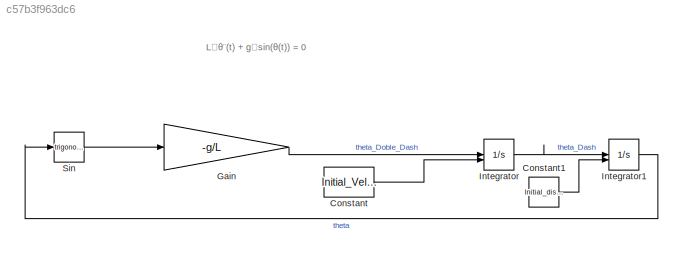
MODEL slx_c57b3f963dc6
KIND model
CONFIG AbsTol = auto
CONFIG EnableMultiTasking = off
CONFIG FixedStep = auto
CONFIG MaxStep = 1e-3
CONFIG MinStep = auto
CONFIG RelTol = 1e-3
CONFIG SampleTimeConstraint = Unconstrained
CONFIG SolverName = VariableStepAuto
CONFIG StartTime = 0.0
CONFIG StopTime = 10.0
BLOCK [Constant] Constant
  Value = Initial_Velocity
BLOCK [Constant] Constant1
  Value = Initial_displacement
BLOCK [Gain] Gain
  Gain = -g/L
BLOCK [Integrator] Integrator
  InitialCondition = 0.1
  InitialConditionSource = external
BLOCK [Integrator] Integrator1
  InitialConditionSource = external
BLOCK [Trigonometry] Sin
ANNOTATION (root): L ⋅ θ ¨( t ) + g ⋅sin( θ ( t )) = 0
LINE Constant1:1 -> Integrator1:2
LINE Constant:1 -> Integrator:2
LINE Gain:1 -> Integrator:1
LINE Integrator1:1 -> Sin:1
LINE Integrator:1 -> Integrator1:1
LINE Sin:1 -> Gain:1
